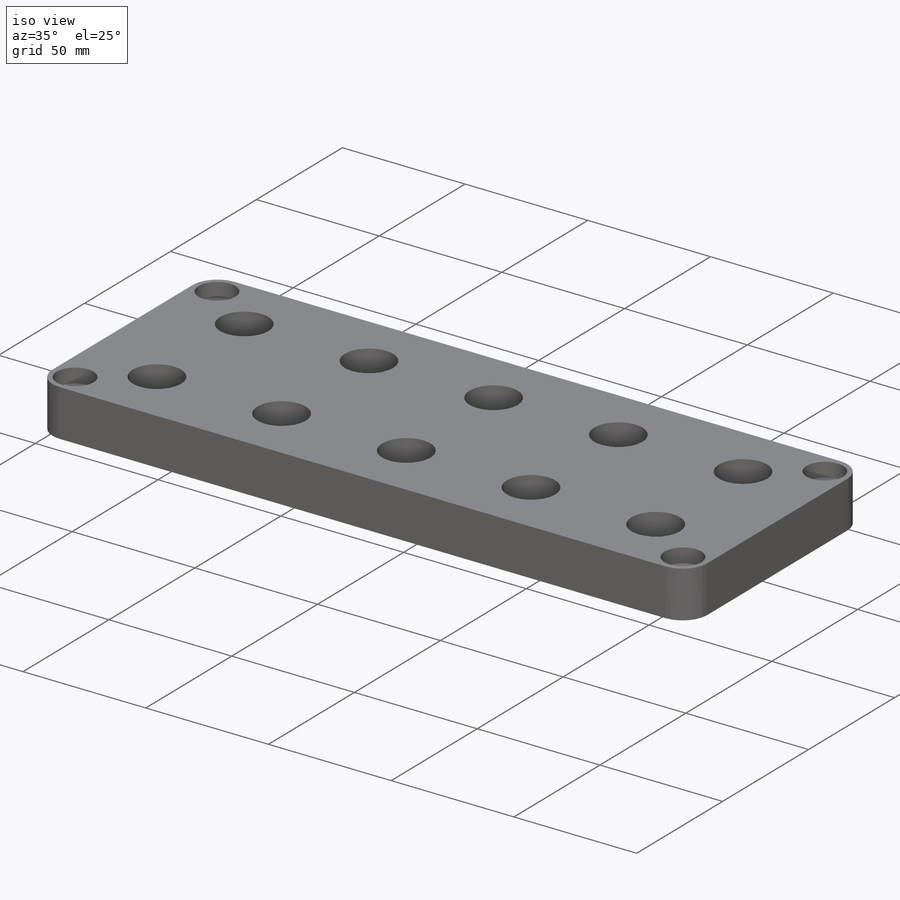
[diagram: iso view]
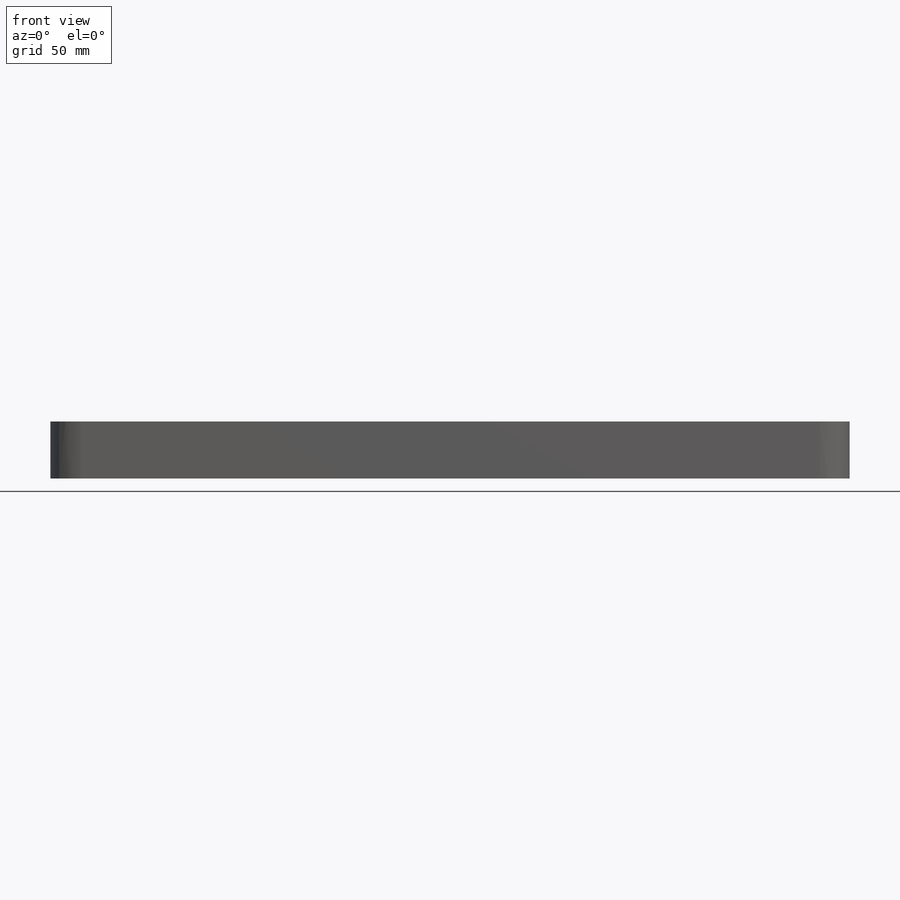
[diagram: front view]
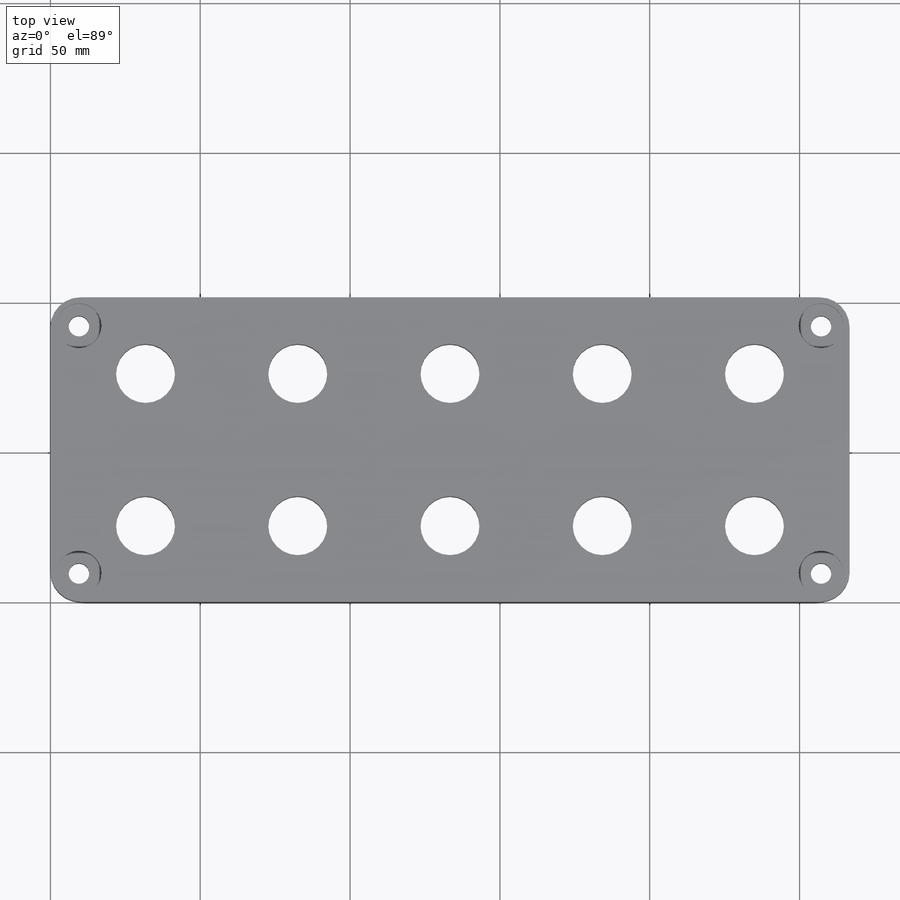
[diagram: top view]
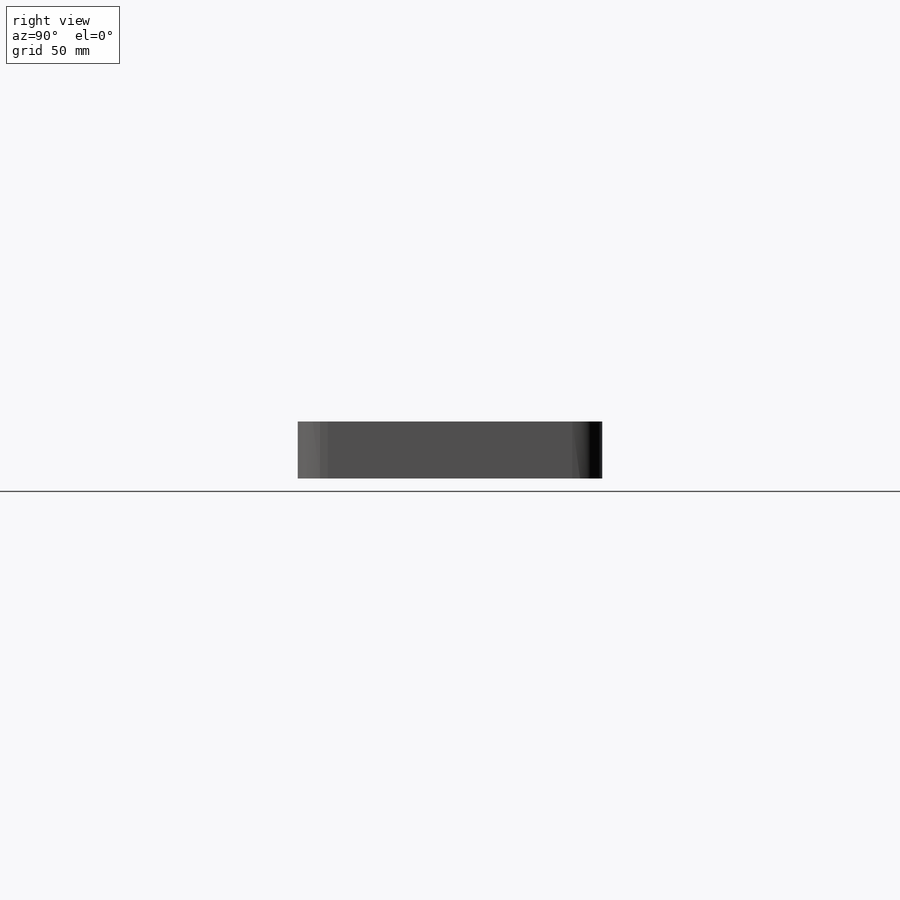
[diagram: right view]
SOLIDWORKS PART (.sldprt)
format: sldprt  version: not decoded by parser v0  size: 364,544 bytes
history: native  units: mm
features: sketch x2, material x1, extrude x1, fillet x1, cut_extrude x1 (+11 scaffold rows collapsed)
feature tree (17):
  scaffold x11  (default folders/planes/origin — collapsed)
  material  "Acrylic (Medium-high impact)"
  sketch  "Sketch1"  dims[c1.D1=9.779mm c1.D7=3.302mm c1.D9=~7.165832mm c2.D1=31.75mm c2.D2=25.4mm c2.D5=266.7mm c2.D6=101.6mm c2.D7=12.7mm c2.D8=19.05mm c3.D7=9.525mm c3.D8=9.525mm c3.D3=5.0 c3.D4=2.0]
  extrude  "Boss-Extrude1"  Depth=19.05mm
  fillet  "Fillet1"  Radius=10mm
  sketch  "Sketch2"  dims[c1.D1=7.493mm c2.D1=2.0 c2.D2=2.0]
  cut_extrude  "Cut-Extrude1"  Depth=5.842mm
decode coverage: 5 of 5 modeling features carry decoded parameters
note: ~ marks probable driven/reference dimensions
note: suppression state not decoded; provenance and decode notes live in map.json
